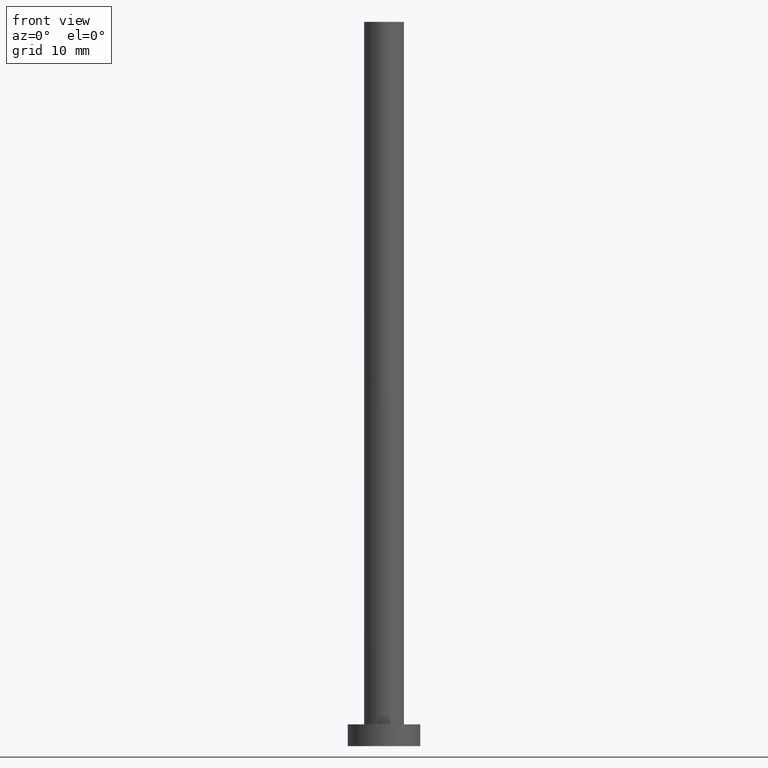
[diagram: clean part render]
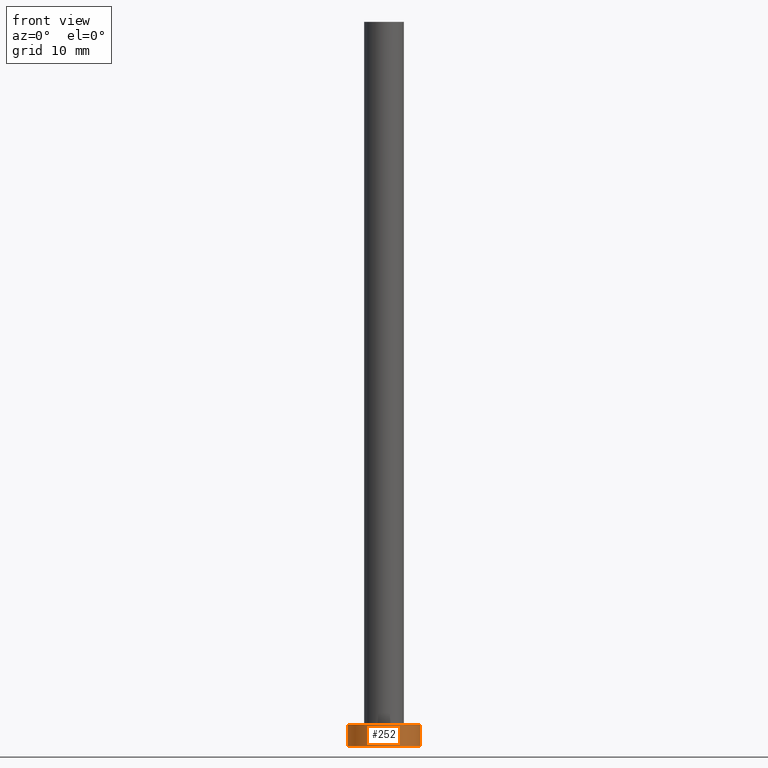
[diagram: same view with one face highlighted and labeled with its STEP entity id]
A machine part, front view. The second image highlights one B-rep face of the part: STEP entity #252.
In plain terms, the highlighted cylindrical surface (edge-blend (fillet) strip) has radius 5 mm, axis along (-0, -0, -1).
Its self-contained STEP definition (entity closure, byte-faithful):
#17 = CYLINDRICAL_SURFACE ( 'NONE', #32, 5.000000000000000000 ) ;
#18 = LINE ( 'NONE', #24, #226 ) ;
#24 = CARTESIAN_POINT ( 'NONE',  ( 5.000000000000000000, 6.123233995736766282E-16, 3.000000000000000000 ) ) ;
#25 = LINE ( 'NONE', #212, #89 ) ;
#32 = AXIS2_PLACEMENT_3D ( 'NONE', #251, #150, #52 ) ;
#33 = EDGE_CURVE ( 'NONE', #224, #81, #25, .T. ) ;
#37 = AXIS2_PLACEMENT_3D ( 'NONE', #102, #215, #119 ) ;
#46 = CARTESIAN_POINT ( 'NONE',  ( 0.000000000000000000, 0.000000000000000000, 3.000000000000000000 ) ) ;
#50 = EDGE_CURVE ( 'NONE', #81, #125, #134, .T. ) ;
#52 = DIRECTION ( 'NONE',  ( -1.000000000000000000, 0.000000000000000000, 0.000000000000000000 ) ) ;
#70 = EDGE_CURVE ( 'NONE', #103, #125, #18, .T. ) ;
#77 = EDGE_LOOP ( 'NONE', ( #189, #145, #220, #104 ) ) ;
#81 = VERTEX_POINT ( 'NONE', #155 ) ;
#89 = VECTOR ( 'NONE', #158, 1000.000000000000000 ) ;
#91 = AXIS2_PLACEMENT_3D ( 'NONE', #46, #163, #105 ) ;
#102 = CARTESIAN_POINT ( 'NONE',  ( 0.000000000000000000, 0.000000000000000000, 0.000000000000000000 ) ) ;
#103 = VERTEX_POINT ( 'NONE', #141 ) ;
#104 = ORIENTED_EDGE ( 'NONE', *, *, #50, .T. ) ;
#105 = DIRECTION ( 'NONE',  ( 1.000000000000000000, 0.000000000000000000, 0.000000000000000000 ) ) ;
#119 = DIRECTION ( 'NONE',  ( 1.000000000000000000, 0.000000000000000000, 0.000000000000000000 ) ) ;
#125 = VERTEX_POINT ( 'NONE', #223 ) ;
#131 = CIRCLE ( 'NONE', #91, 5.000000000000000000 ) ;
#134 = CIRCLE ( 'NONE', #37, 5.000000000000000000 ) ;
#137 = DIRECTION ( 'NONE',  ( -0.000000000000000000, -0.000000000000000000, -1.000000000000000000 ) ) ;
#141 = CARTESIAN_POINT ( 'NONE',  ( 5.000000000000000000, 6.123233995736766282E-16, 3.000000000000000000 ) ) ;
#145 = ORIENTED_EDGE ( 'NONE', *, *, #214, .F. ) ;
#150 = DIRECTION ( 'NONE',  ( -0.000000000000000000, -0.000000000000000000, -1.000000000000000000 ) ) ;
#155 = CARTESIAN_POINT ( 'NONE',  ( -5.000000000000000000, 0.000000000000000000, 0.000000000000000000 ) ) ;
#158 = DIRECTION ( 'NONE',  ( -0.000000000000000000, -0.000000000000000000, -1.000000000000000000 ) ) ;
#162 = CARTESIAN_POINT ( 'NONE',  ( -5.000000000000000000, 0.000000000000000000, 3.000000000000000000 ) ) ;
#163 = DIRECTION ( 'NONE',  ( 0.000000000000000000, 0.000000000000000000, 1.000000000000000000 ) ) ;
#166 = FACE_OUTER_BOUND ( 'NONE', #77, .T. ) ;
#189 = ORIENTED_EDGE ( 'NONE', *, *, #70, .F. ) ;
#212 = CARTESIAN_POINT ( 'NONE',  ( -5.000000000000000000, 0.000000000000000000, 3.000000000000000000 ) ) ;
#214 = EDGE_CURVE ( 'NONE', #224, #103, #131, .T. ) ;
#215 = DIRECTION ( 'NONE',  ( 0.000000000000000000, 0.000000000000000000, 1.000000000000000000 ) ) ;
#220 = ORIENTED_EDGE ( 'NONE', *, *, #33, .T. ) ;
#223 = CARTESIAN_POINT ( 'NONE',  ( 5.000000000000000000, 6.123233995736766282E-16, 0.000000000000000000 ) ) ;
#224 = VERTEX_POINT ( 'NONE', #162 ) ;
#226 = VECTOR ( 'NONE', #137, 1000.000000000000000 ) ;
#251 = CARTESIAN_POINT ( 'NONE',  ( 0.000000000000000000, 0.000000000000000000, 3.000000000000000000 ) ) ;
#252 = ADVANCED_FACE ( 'NONE', ( #166 ), #17, .T. ) ;